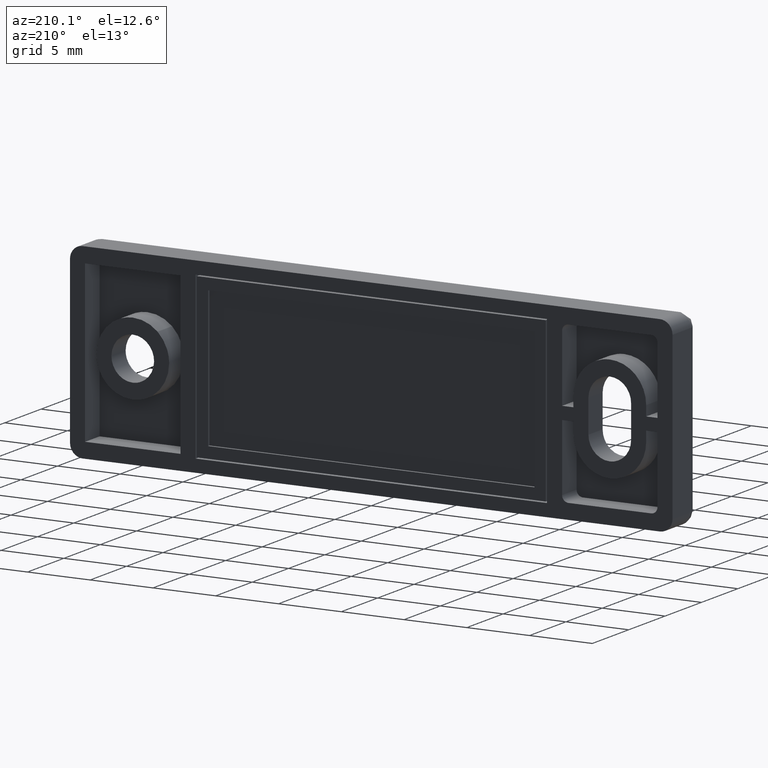
[diagram: clean part render]
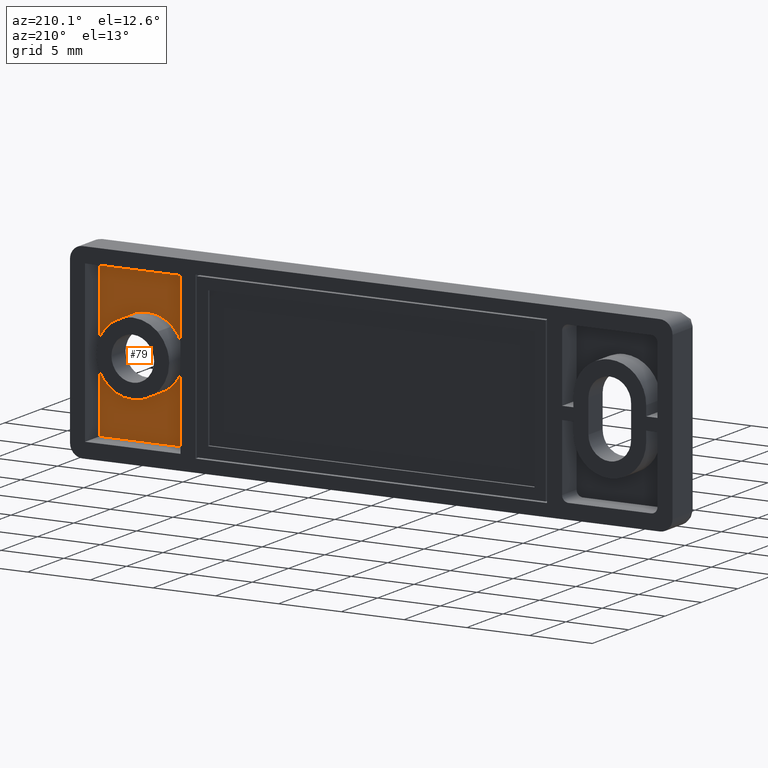
[diagram: same view with one face highlighted and labeled with its STEP entity id]
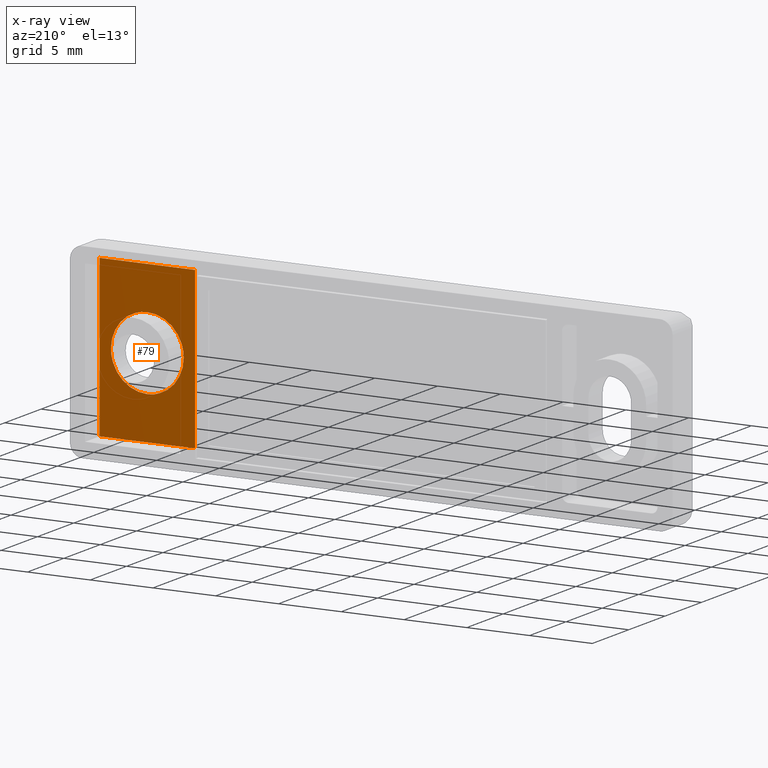
[diagram: x-ray of the same camera — body ghosted, the highlighted face saturated]
A machine part, auxiliary view. The second image highlights one B-rep face of the part: STEP entity #79.
The next image is the same camera in x-ray: the body ghosted, the highlighted face saturated — about 0% of this face is hidden behind the body in this view.
In plain terms, the highlighted planar face has unit normal (0, 1, 0).
Its self-contained STEP definition (entity closure, byte-faithful):
#79=ADVANCED_FACE('',(#192,#193),#191,.T.);
#191=PLANE('',#955);
#192=FACE_OUTER_BOUND('',#956,.T.);
#193=FACE_BOUND('',#957,.T.);
#952=CARTESIAN_POINT('',(1.44400000000E+01,-2.00000000000E+00,7.56000000000E+00));
#953=DIRECTION('',(-0.00000000000E+00,1.00000000000E+00,0.00000000000E+00));
#954=DIRECTION('',(1.00000000000E+00,0.00000000000E+00,0.00000000000E+00));
#955=AXIS2_PLACEMENT_3D('',#952,#953,#954);
#956=EDGE_LOOP('',(#1433,#1434,#1435,#1436));
#957=EDGE_LOOP('',(#1437,#1438,#1439,#1440,#1441,#1442,#1443,#1444));
#1433=ORIENTED_EDGE('',*,*,#1861,.F.);
#1434=ORIENTED_EDGE('',*,*,#1862,.F.);
#1435=ORIENTED_EDGE('',*,*,#1863,.F.);
#1436=ORIENTED_EDGE('',*,*,#1864,.F.);
#1437=ORIENTED_EDGE('',*,*,#1865,.T.);
#1438=ORIENTED_EDGE('',*,*,#1866,.T.);
#1439=ORIENTED_EDGE('',*,*,#1867,.T.);
#1440=ORIENTED_EDGE('',*,*,#1868,.T.);
#1441=ORIENTED_EDGE('',*,*,#1869,.T.);
#1442=ORIENTED_EDGE('',*,*,#1870,.T.);
#1443=ORIENTED_EDGE('',*,*,#1871,.T.);
#1444=ORIENTED_EDGE('',*,*,#1872,.T.);
#1861=EDGE_CURVE('',#2245,#2246,#2247,.T.);
#1862=EDGE_CURVE('',#2253,#2245,#2254,.T.);
#1863=EDGE_CURVE('',#2260,#2253,#2261,.T.);
#1864=EDGE_CURVE('',#2246,#2260,#2267,.T.);
#1865=EDGE_CURVE('',#2273,#2274,#2275,.T.);
#1866=EDGE_CURVE('',#2274,#2281,#2282,.T.);
#1867=EDGE_CURVE('',#2281,#2288,#2289,.T.);
#1868=EDGE_CURVE('',#2288,#2295,#2296,.T.);
#1869=EDGE_CURVE('',#2295,#2302,#2303,.T.);
#1870=EDGE_CURVE('',#2302,#2309,#2310,.T.);
#1871=EDGE_CURVE('',#2309,#2316,#2317,.T.);
#1872=EDGE_CURVE('',#2316,#2273,#2323,.T.);
#2245=VERTEX_POINT('',#3704);
#2246=VERTEX_POINT('',#3705);
#2247=LINE('',#3706,#3707);
#2253=VERTEX_POINT('',#3709);
#2254=LINE('',#3710,#3711);
#2260=VERTEX_POINT('',#3713);
#2261=LINE('',#3714,#3715);
#2267=LINE('',#3717,#3718);
#2273=VERTEX_POINT('',#3720);
#2274=VERTEX_POINT('',#3721);
#2275=(BOUNDED_CURVE() B_SPLINE_CURVE(3,(#3722,#3723,#3724,#3725,#3726,#3727),.UNSPECIFIED.,.F.,.F.) B_SPLINE_CURVE_WITH_KNOTS((4,1,1,4),(5.91963720000E-08,8.54120512762E-01,1.63708484326E+00,2.17091161978E+00),.UNSPECIFIED.) CURVE() GEOMETRIC_REPRESENTATION_ITEM() RATIONAL_B_SPLINE_CURVE((1.00000000000E+00,1.00000000000E+00,1.00000000000E+00,1.00000000000E+00,1.00000000000E+00,1.00000000000E+00)) REPRESENTATION_ITEM('') );
#2281=VERTEX_POINT('',#3728);
#2282=(BOUNDED_CURVE() B_SPLINE_CURVE(3,(#3729,#3730,#3731,#3732,#3733,#3734,#3735),.UNSPECIFIED.,.F.,.F.) B_SPLINE_CURVE_WITH_KNOTS((4,1,1,1,4),(2.17091161978E+00,2.70471897106E+00,3.13178920062E+00,3.87916020053E+00,4.55533820070E+00),.UNSPECIFIED.) CURVE() GEOMETRIC_REPRESENTATION_ITEM() RATIONAL_B_SPLINE_CURVE((1.00000000000E+00,1.00000000000E+00,1.00000000000E+00,1.00000000000E+00,1.00000000000E+00,1.00000000000E+00,1.00000000000E+00)) REPRESENTATION_ITEM('') );
#2288=VERTEX_POINT('',#3736);
#2289=(BOUNDED_CURVE() B_SPLINE_CURVE(3,(#3737,#3738,#3739,#3740,#3741,#3742,#3743),.UNSPECIFIED.,.F.,.F.) B_SPLINE_CURVE_WITH_KNOTS((4,1,1,1,4),(1.34841340000E-08,4.70558995791E-01,1.04196244165E+00,1.54612396525E+00,2.15112995240E+00),.UNSPECIFIED.) CURVE() GEOMETRIC_REPRESENTATION_ITEM() RATIONAL_B_SPLINE_CURVE((1.00000000000E+00,1.00000000000E+00,1.00000000000E+00,1.00000000000E+00,1.00000000000E+00,1.00000000000E+00,1.00000000000E+00)) REPRESENTATION_ITEM('') );
#2295=VERTEX_POINT('',#3744);
#2296=(BOUNDED_CURVE() B_SPLINE_CURVE(3,(#3745,#3746,#3747,#3748,#3749,#3750,#3751),.UNSPECIFIED.,.F.,.F.) B_SPLINE_CURVE_WITH_KNOTS((4,1,1,1,4),(1.78397680000E-08,7.13751232474E-01,1.31479578567E+00,1.80315589696E+00,2.40420785666E+00),.UNSPECIFIED.) CURVE() GEOMETRIC_REPRESENTATION_ITEM() RATIONAL_B_SPLINE_CURVE((1.00000000000E+00,1.00000000000E+00,1.00000000000E+00,1.00000000000E+00,1.00000000000E+00,1.00000000000E+00,1.00000000000E+00)) REPRESENTATION_ITEM('') );
#2302=VERTEX_POINT('',#3752);
#2303=(BOUNDED_CURVE() B_SPLINE_CURVE(3,(#3753,#3754,#3755,#3756,#3757,#3758),.UNSPECIFIED.,.F.,.F.) B_SPLINE_CURVE_WITH_KNOTS((4,1,1,4),(5.91974350000E-08,9.60888253215E-01,1.63708484326E+00,2.17090563845E+00),.UNSPECIFIED.) CURVE() GEOMETRIC_REPRESENTATION_ITEM() RATIONAL_B_SPLINE_CURVE((1.00000000000E+00,1.00000000000E+00,1.00000000000E+00,1.00000000000E+00,1.00000000000E+00,1.00000000000E+00)) REPRESENTATION_ITEM('') );
#2309=VERTEX_POINT('',#3759);
#2310=(BOUNDED_CURVE() B_SPLINE_CURVE(3,(#3760,#3761,#3762,#3763,#3764,#3765,#3766),.UNSPECIFIED.,.F.,.F.) B_SPLINE_CURVE_WITH_KNOTS((4,1,1,1,4),(2.17090563845E+00,2.70471897106E+00,3.20297084697E+00,3.87916020053E+00,4.55533820070E+00),.UNSPECIFIED.) CURVE() GEOMETRIC_REPRESENTATION_ITEM() RATIONAL_B_SPLINE_CURVE((1.00000000000E+00,1.00000000000E+00,1.00000000000E+00,1.00000000000E+00,1.00000000000E+00,1.00000000000E+00,1.00000000000E+00)) REPRESENTATION_ITEM('') );
#2316=VERTEX_POINT('',#3767);
#2317=(BOUNDED_CURVE() B_SPLINE_CURVE(3,(#3768,#3769,#3770,#3771,#3772,#3773),.UNSPECIFIED.,.F.,.F.) B_SPLINE_CURVE_WITH_KNOTS((4,1,1,4),(1.34836040000E-08,7.05841718830E-01,1.17639839949E+00,2.15112995240E+00),.UNSPECIFIED.) CURVE() GEOMETRIC_REPRESENTATION_ITEM() RATIONAL_B_SPLINE_CURVE((1.00000000000E+00,1.00000000000E+00,1.00000000000E+00,1.00000000000E+00,1.00000000000E+00,1.00000000000E+00)) REPRESENTATION_ITEM('') );
#2323=(BOUNDED_CURVE() B_SPLINE_CURVE(3,(#3774,#3775,#3776,#3777,#3778,#3779,#3780),.UNSPECIFIED.,.F.,.F.) B_SPLINE_CURVE_WITH_KNOTS((4,1,1,1,4),(1.78400700000E-08,8.64017570743E-01,1.42749178024E+00,1.80315589696E+00,2.40420785666E+00),.UNSPECIFIED.) CURVE() GEOMETRIC_REPRESENTATION_ITEM() RATIONAL_B_SPLINE_CURVE((1.00000000000E+00,1.00000000000E+00,1.00000000000E+00,1.00000000000E+00,1.00000000000E+00,1.00000000000E+00,1.00000000000E+00)) REPRESENTATION_ITEM('') );
#3704=CARTESIAN_POINT('',(2.28000000000E+01,-2.00000000000E+00,-6.30000000000E+00));
#3705=CARTESIAN_POINT('',(2.28000000000E+01,-2.00000000000E+00,6.30000000000E+00));
#3706=CARTESIAN_POINT('',(2.28000000000E+01,-2.00000000000E+00,-6.30000000000E+00));
#3707=VECTOR('',#3708,1.26000000000E+01);
#3708=DIRECTION('',(0.00000000000E+00,0.00000000000E+00,1.00000000000E+00));
#3709=CARTESIAN_POINT('',(1.52000000000E+01,-2.00000000000E+00,-6.30000000000E+00));
#3710=CARTESIAN_POINT('',(1.52000000000E+01,-2.00000000000E+00,-6.30000000000E+00));
#3711=VECTOR('',#3712,7.60000000000E+00);
#3712=DIRECTION('',(1.00000000000E+00,0.00000000000E+00,0.00000000000E+00));
#3713=CARTESIAN_POINT('',(1.52000000000E+01,-2.00000000000E+00,6.30000000000E+00));
#3714=CARTESIAN_POINT('',(1.52000000000E+01,-2.00000000000E+00,6.30000000000E+00));
#3715=VECTOR('',#3716,1.26000000000E+01);
#3716=DIRECTION('',(0.00000000000E+00,0.00000000000E+00,-1.00000000000E+00));
#3717=CARTESIAN_POINT('',(2.28000000000E+01,-2.00000000000E+00,6.30000000000E+00));
#3718=VECTOR('',#3719,7.60000000000E+00);
#3719=DIRECTION('',(-1.00000000000E+00,0.00000000000E+00,0.00000000000E+00));
#3720=CARTESIAN_POINT('',(1.90000000000E+01,-2.00000000000E+00,2.90000000000E+00));
#3721=CARTESIAN_POINT('',(1.70262474538E+01,-2.00000000000E+00,2.12469645456E+00));
#3722=CARTESIAN_POINT('',(1.90000000000E+01,-2.00000000000E+00,2.90000000000E+00));
#3723=CARTESIAN_POINT('',(1.87152820366E+01,-2.00000000000E+00,2.90011587016E+00));
#3724=CARTESIAN_POINT('',(1.81696581986E+01,-2.00000000000E+00,2.81899602311E+00));
#3725=CARTESIAN_POINT('',(1.75057371252E+01,-2.00000000000E+00,2.51491588789E+00));
#3726=CARTESIAN_POINT('',(1.71566080364E+01,-2.00000000000E+00,2.24581354545E+00));
#3727=CARTESIAN_POINT('',(1.70262474284E+01,-2.00000000000E+00,2.12469643091E+00));
#3728=CARTESIAN_POINT('',(1.61000000000E+01,-2.00000000000E+00,-4.79678975000E-07));
#3729=CARTESIAN_POINT('',(1.70262474284E+01,-2.00000000000E+00,2.12469643091E+00));
#3730=CARTESIAN_POINT('',(1.68958915640E+01,-2.00000000000E+00,2.00358372366E+00));
#3731=CARTESIAN_POINT('',(1.66813613308E+01,-2.00000000000E+00,1.76393478365E+00));
#3732=CARTESIAN_POINT('',(1.63758371261E+01,-2.00000000000E+00,1.28158282726E+00));
#3733=CARTESIAN_POINT('',(1.61555565359E+01,-2.00000000000E+00,6.99902513419E-01));
#3734=CARTESIAN_POINT('',(1.60999667652E+01,-2.00000000000E+00,2.25390723986E-01));
#3735=CARTESIAN_POINT('',(1.61000000000E+01,-2.00000000000E+00,-4.79678975000E-07));
#3736=CARTESIAN_POINT('',(1.68618956658E+01,-2.00000000000E+00,-1.95921171621E+00));
#3737=CARTESIAN_POINT('',(1.61000000000E+01,-2.00000000000E+00,-4.79678975000E-07));
#3738=CARTESIAN_POINT('',(1.60999933327E+01,-2.00000000000E+00,-1.56852392981E-01));
#3739=CARTESIAN_POINT('',(1.61282305317E+01,-2.00000000000E+00,-5.04172179393E-01));
#3740=CARTESIAN_POINT('',(1.62617486989E+01,-2.00000000000E+00,-1.00454036008E+00));
#3741=CARTESIAN_POINT('',(1.65044266106E+01,-2.00000000000E+00,-1.51178633395E+00));
#3742=CARTESIAN_POINT('',(1.67256293144E+01,-2.00000000000E+00,-1.81054537134E+00));
#3743=CARTESIAN_POINT('',(1.68618956658E+01,-2.00000000000E+00,-1.95921171621E+00));
#3744=CARTESIAN_POINT('',(1.90000000000E+01,-2.00000000000E+00,-2.90000000000E+00));
#3745=CARTESIAN_POINT('',(1.68618956658E+01,-2.00000000000E+00,-1.95921171621E+00));
#3746=CARTESIAN_POINT('',(1.70225871168E+01,-2.00000000000E+00,-2.13466842439E+00));
#3747=CARTESIAN_POINT('',(1.73586897426E+01,-2.00000000000E+00,-2.42107752508E+00));
#3748=CARTESIAN_POINT('',(1.78948850680E+01,-2.00000000000E+00,-2.69974117591E+00));
#3749=CARTESIAN_POINT('',(1.84365266702E+01,-2.00000000000E+00,-2.86221192448E+00));
#3750=CARTESIAN_POINT('',(1.87996483878E+01,-2.00000000000E+00,-2.90003133862E+00));
#3751=CARTESIAN_POINT('',(1.90000000000E+01,-2.00000000000E+00,-2.90000000000E+00));
#3752=CARTESIAN_POINT('',(2.09737470918E+01,-2.00000000000E+00,-2.12469943272E+00));
#3753=CARTESIAN_POINT('',(1.90000000000E+01,-2.00000000000E+00,-2.90000000000E+00));
#3754=CARTESIAN_POINT('',(1.93203169259E+01,-2.00000000000E+00,-2.90019052561E+00));
#3755=CARTESIAN_POINT('',(1.98658808536E+01,-2.00000000000E+00,-2.80865184212E+00));
#3756=CARTESIAN_POINT('',(2.05225488952E+01,-2.00000000000E+00,-2.49304949128E+00));
#3757=CARTESIAN_POINT('',(2.08433844002E+01,-2.00000000000E+00,-2.24580605786E+00));
#3758=CARTESIAN_POINT('',(2.09737485779E+01,-2.00000000000E+00,-2.12469805208E+00));
#3759=CARTESIAN_POINT('',(2.19000000000E+01,-2.00000000000E+00,4.79678953000E-07));
#3760=CARTESIAN_POINT('',(2.09737485779E+01,-2.00000000000E+00,-2.12469805208E+00));
#3761=CARTESIAN_POINT('',(2.11041109333E+01,-2.00000000000E+00,-2.00359173934E+00));
#3762=CARTESIAN_POINT('',(2.13345401822E+01,-2.00000000000E+00,-1.74618485957E+00));
#3763=CARTESIAN_POINT('',(2.16343935073E+01,-2.00000000000E+00,-1.25963720718E+00));
#3764=CARTESIAN_POINT('',(2.18471868244E+01,-2.00000000000E+00,-6.76163243035E-01));
#3765=CARTESIAN_POINT('',(2.19000481911E+01,-2.00000000000E+00,-2.25394435776E-01));
#3766=CARTESIAN_POINT('',(2.19000000000E+01,-2.00000000000E+00,4.79678953000E-07));
#3767=CARTESIAN_POINT('',(2.11381043342E+01,-2.00000000000E+00,1.95921171621E+00));
#3768=CARTESIAN_POINT('',(2.19000000000E+01,-2.00000000000E+00,4.79678953000E-07));
#3769=CARTESIAN_POINT('',(2.19000563996E+01,-2.00000000000E+00,2.35285532496E-01));
#3770=CARTESIAN_POINT('',(2.18519998914E+01,-2.00000000000E+00,6.27382013259E-01));
#3771=CARTESIAN_POINT('',(2.16226385043E+01,-2.00000000000E+00,1.30925912376E+00));
#3772=CARTESIAN_POINT('',(2.13578160637E+01,-2.00000000000E+00,1.71979879246E+00));
#3773=CARTESIAN_POINT('',(2.11381043342E+01,-2.00000000000E+00,1.95921171621E+00));
#3774=CARTESIAN_POINT('',(2.11381043342E+01,-2.00000000000E+00,1.95921171621E+00));
#3775=CARTESIAN_POINT('',(2.09436069335E+01,-2.00000000000E+00,2.17163633842E+00));
#3776=CARTESIAN_POINT('',(2.05694159649E+01,-2.00000000000E+00,2.47403940383E+00));
#3777=CARTESIAN_POINT('',(2.00214600358E+01,-2.00000000000E+00,2.72788790762E+00));
#3778=CARTESIAN_POINT('',(1.95259066966E+01,-2.00000000000E+00,2.86611574495E+00));
#3779=CARTESIAN_POINT('',(1.92003524638E+01,-2.00000000000E+00,2.90003423013E+00));
#3780=CARTESIAN_POINT('',(1.90000000000E+01,-2.00000000000E+00,2.90000000000E+00));